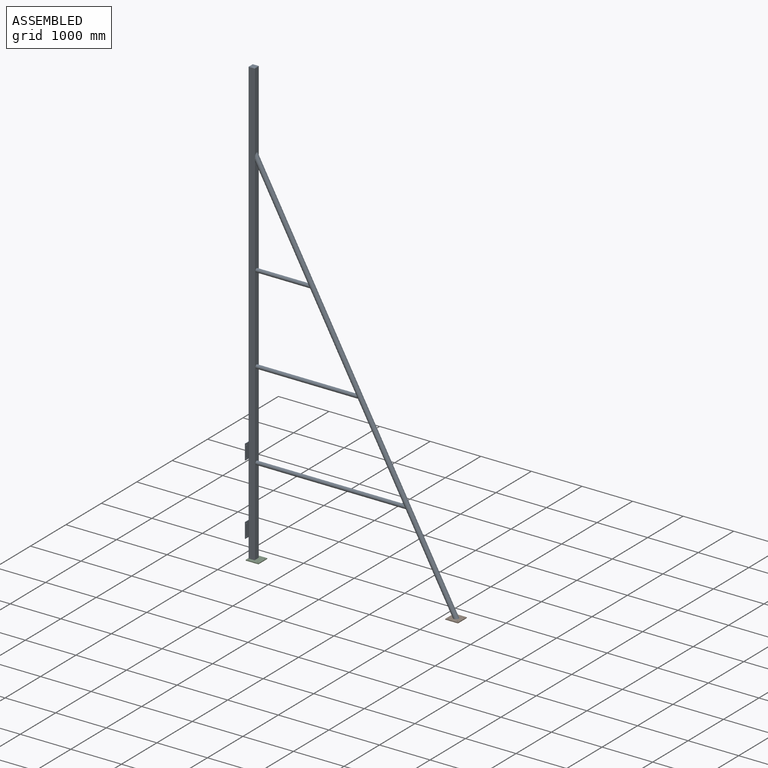
[diagram: assembled view]
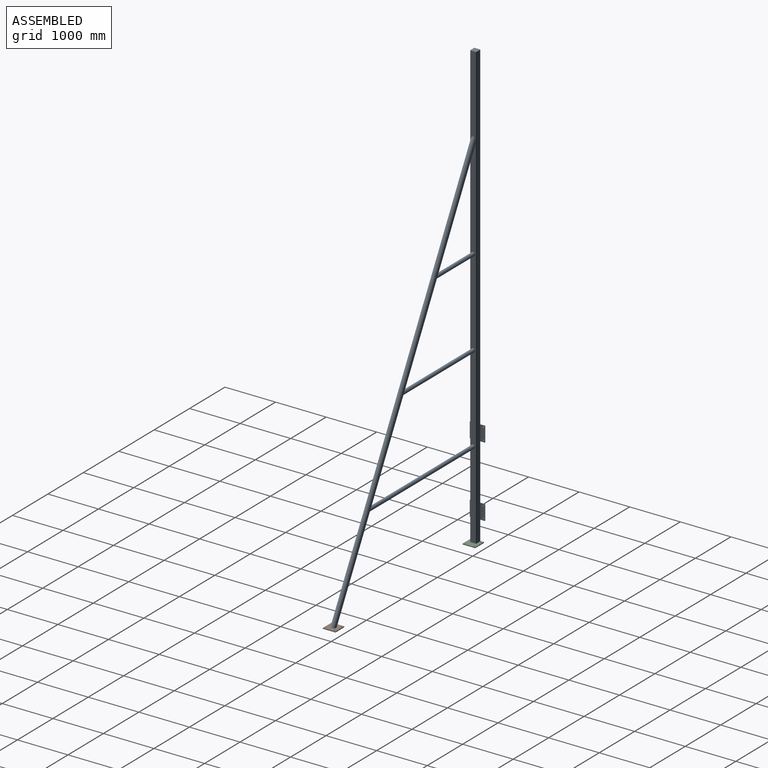
[diagram: assembled view, second angle]
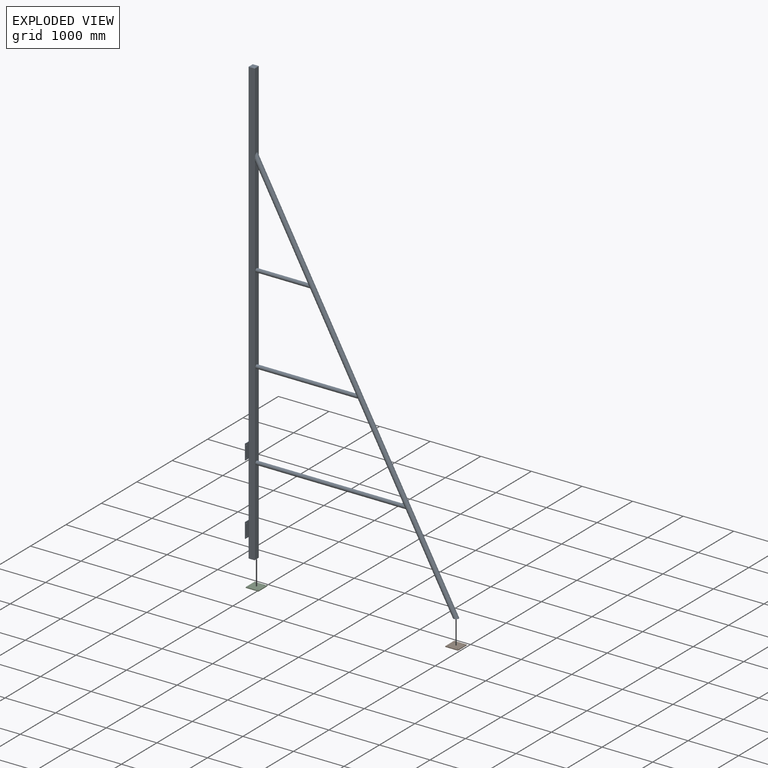
[diagram: exploded view]
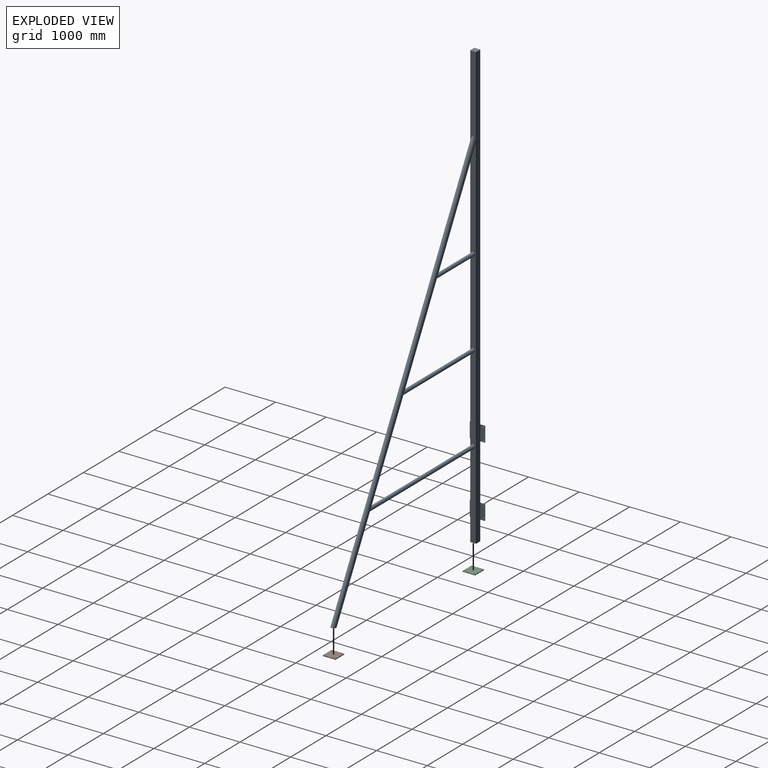
[diagram: exploded view, second angle]
ASSEMBLY  parts=3 mates=2
PART A: 59 faces, bbox 4121x300x8785 mm
  f0: plane 6701x108mm, normal (-1,0,0), area 723708mm2, adj f14,f16,f24,f42
  f1: plane 1100x108mm, normal (-1,0,0), area 118800mm2, adj f14,f16,f35,f40
  f2: cylinder r=3mm len=8780mm, axis (0,0,-1), area 41374.8mm2, adj f3,f17,f18,f23
  f3: plane 8780x102mm, normal (0,1,0), area 895560mm2, adj f2,f4,f18,f23
  f4: cylinder r=3mm len=8780mm, axis (0,0,-1), area 41374.8mm2, adj f3,f5,f18,f23
  f5: plane 8780x102mm, normal (1,0,0), area 895560mm2, adj f4,f6,f18,f23
  f6: cylinder r=3mm len=8780mm, axis (0,0,-1), area 41374.8mm2, adj f5,f7,f18,f23
  f7: plane 8780x102mm, normal (0,-1,0), area 895560mm2, adj f6,f8,f18,f23
  f8: cylinder r=3mm len=8780mm, axis (0,0,-1), area 41374.8mm2, adj f7,f17,f18,f23
  f9: plane 8785x108mm, normal (0,-1,0), area 948780mm2, adj f10,f16,f18,f24
  f10: cylinder r=6mm len=8785mm, axis (0,0,-1), area 82796.7mm2, adj f9,f11,f18,f24
  f11: plane 8785x108mm, normal (1,0,0), area 921355.6mm2, adj f10,f12,f18,f21,f24,f25,f26,f27
  f12: cylinder r=6mm len=8785mm, axis (0,0,-1), area 82796.7mm2, adj f11,f13,f18,f24
  f13: plane 8785x108mm, normal (0,1,0), area 948780mm2, adj f12,f14,f18,f24
  f14: cylinder r=6mm len=8785mm, axis (0,0,-1), area 82796.7mm2, adj f0,f1,f13,f15,f18,f24,f28,f39
  f15: plane 384x108mm, normal (-1,0,0), area 41472mm2, adj f14,f16,f18,f30
  f16: cylinder r=6mm len=8785mm, axis (0,0,-1), area 82796.7mm2, adj f0,f1,f9,f15,f18,f24,f38,f49
  f17: plane 8780x102mm, normal (-1,0,0), area 895560mm2, adj f2,f8,f18,f23
  f18: plane 120x120mm, normal (0,0,-1), area 2712.8mm2, adj f2,f3,f4,f5,f6,f7,f8,f9
  f19: bspline ~7280x4096.3mm, area 2329741.7mm2, adj f20,f22
  f20: plane 102x102mm, normal (0,0,-1), area 887.7mm2, adj f19,f21
  f21: bspline ~7280x4102mm, area 2452401.7mm2, adj f11,f20,f25,f26,f27
  f22: plane 175.27x96.32mm, normal (1,0,0), area 13255.5mm2, adj f19
  f23: plane 108x108mm, normal (0,0,-1), area 11656.3mm2, adj f2,f3,f4,f5,f6,f7,f8,f17
  f24: plane 120x120mm, normal (0,0,1), area 14369.1mm2, adj f0,f9,f10,f11,f12,f13,f14,f16
  f25: cylinder r=36.5mm len=2965.18mm, axis (-1,0,0), area 676836.5mm2, adj f11,f21
  f26: cylinder r=36.5mm len=2020.13mm, axis (-1,0,0), area 460101.1mm2, adj f11,f21
  f27: cylinder r=36.5mm len=1075.07mm, axis (-1,0,0), area 243365.8mm2, adj f11,f21
  f28: plane 300x96mm, normal (1,0,0), area 28291.1mm2, adj f14,f29,f30,f32,f35,f36
  f29: plane 300x10mm, normal (0,1,0), area 3000mm2, adj f28,f30,f35,f37
  f30: plane 300x10mm, normal (0,0,-1), area 3000mm2, adj f15,f28,f29,f31,f37,f38
  f31: plane 300x10mm, normal (0,-1,0), area 3000mm2, adj f30,f35,f37,f38
  f32: cylinder r=9mm len=18mm, axis (1,0,0), area 565.5mm2, adj f28,f37
  f33: cylinder r=9mm len=18mm, axis (1,0,0), area 565.5mm2, adj f37,f38
  f34: cylinder r=9mm len=18mm, axis (1,0,0), area 565.5mm2, adj f37,f38
  f35: plane 300x10mm, normal (0,0,1), area 3000mm2, adj f1,f28,f29,f31,f37,f38
  f36: cylinder r=9mm len=18mm, axis (1,0,0), area 565.5mm2, adj f28,f37
  f37: plane 300x300mm, normal (-1,0,0), area 88982.1mm2, adj f29,f30,f31,f32,f33,f34,f35,f36
  f38: plane 300x96mm, normal (1,0,0), area 28291.1mm2, adj f16,f30,f31,f33,f34,f35
  f39: plane 300x96mm, normal (1,0,0), area 28291.1mm2, adj f14,f40,f42,f44,f45,f46
  f40: plane 300x10mm, normal (0,0,-1), area 3000mm2, adj f1,f39,f41,f44,f48,f49
  f41: plane 300x10mm, normal (0,-1,0), area 3000mm2, adj f40,f42,f48,f49
  f42: plane 300x10mm, normal (0,0,1), area 3000mm2, adj f0,f39,f41,f44,f48,f49
  f43: cylinder r=9mm len=18mm, axis (1,0,0), area 565.5mm2, adj f48,f49
  f44: plane 300x10mm, normal (0,1,0), area 3000mm2, adj f39,f40,f42,f48
  f45: cylinder r=9mm len=18mm, axis (1,0,0), area 565.5mm2, adj f39,f48
  f46: cylinder r=9mm len=18mm, axis (1,0,0), area 565.5mm2, adj f39,f48
  f47: cylinder r=9mm len=18mm, axis (1,0,0), area 565.5mm2, adj f48,f49
  f48: plane 300x300mm, normal (-1,0,0), area 88982.1mm2, adj f40,f41,f42,f43,f44,f45,f46,f47
  f49: plane 300x96mm, normal (1,0,0), area 28291.1mm2, adj f16,f40,f41,f42,f43,f47
  f50: bspline ~7280x4102mm, area 4349.8mm2, adj f51
  f51: cylinder r=33.95mm len=1073.04mm, axis (-1,0,0), area 226127.7mm2, adj f50,f52
  f52: plane 67.9x67.9mm, normal (1,0,0), area 3621mm2, adj f51
  f53: bspline ~7280x4102mm, area 4349.8mm2, adj f54
  f54: cylinder r=33.95mm len=2018.09mm, axis (-1,0,0), area 427721.2mm2, adj f53,f55
  f55: plane 67.9x67.9mm, normal (1,0,0), area 3621mm2, adj f54
  f56: bspline ~7280x4102mm, area 4349.8mm2, adj f57
  f57: cylinder r=33.95mm len=2963.15mm, axis (-1,0,0), area 629314.8mm2, adj f56,f58
  f58: plane 67.9x67.9mm, normal (1,0,0), area 3621mm2, adj f57
PART B: 10 faces, bbox 250x250x16 mm
  f0: plane 250x16mm, normal (0,-1,0), area 4000mm2, adj f1,f3,f4,f5
  f1: plane 250x16mm, normal (1,0,0), area 4000mm2, adj f0,f2,f4,f5
  f2: plane 250x16mm, normal (0,1,0), area 4000mm2, adj f1,f3,f4,f5
  f3: plane 250x16mm, normal (-1,0,0), area 4000mm2, adj f0,f2,f4,f5
  f4: plane 250x250mm, normal (0,0,1), area 61482.1mm2, adj f0,f1,f2,f3,f6,f7,f8,f9
  f5: plane 250x250mm, normal (0,0,-1), area 61482.1mm2, adj f0,f1,f2,f3,f6,f7,f8,f9
  f6: cylinder r=9mm len=18mm, axis (0,0,1), area 904.8mm2, adj f4,f5
  f7: cylinder r=9mm len=18mm, axis (0,0,1), area 904.8mm2, adj f4,f5
  f8: cylinder r=9mm len=18mm, axis (0,0,1), area 904.8mm2, adj f4,f5
  f9: cylinder r=9mm len=18mm, axis (0,0,1), area 904.8mm2, adj f4,f5
PART C: same geometry as B
PLACE A t=(-6134.62,355,-271.1)mm fixed
PLACE B t=(-2134.62,355,-287.1)mm
PLACE C t=(-6079.62,355,-287.1)mm
MATE fastened B.f4 <-> A.f20  axis (0,0,1) through (-2134.62,355,-271.1)mm
MATE fastened A.f18 <-> C.f4  axis (0,0,-1) through (-6134.62,355,-271.1)mm
